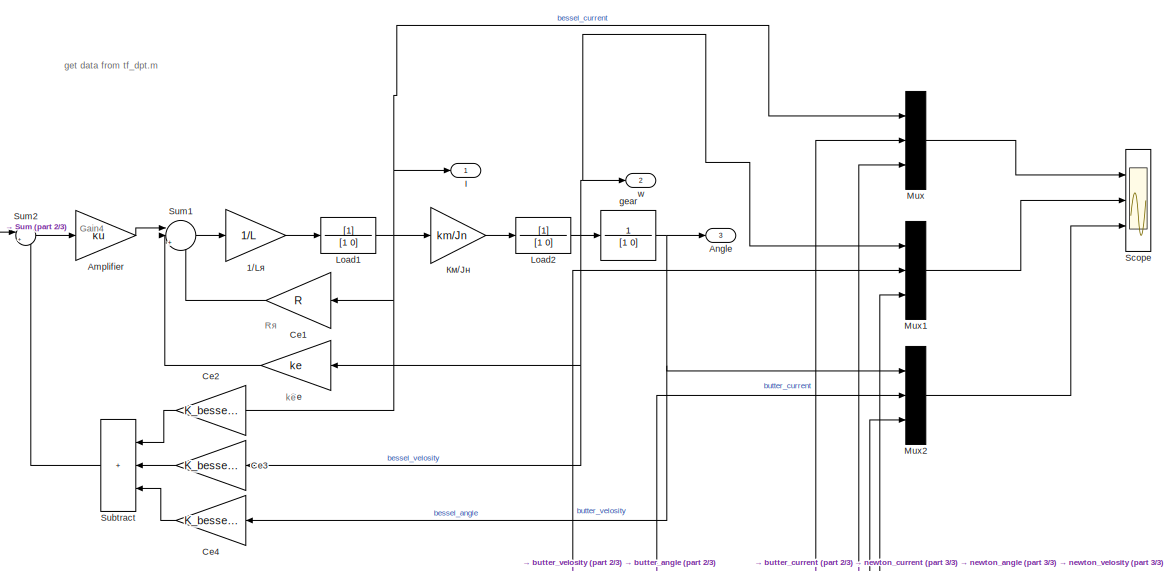
[diagram: root canvas - part 1/3, full width, top band]
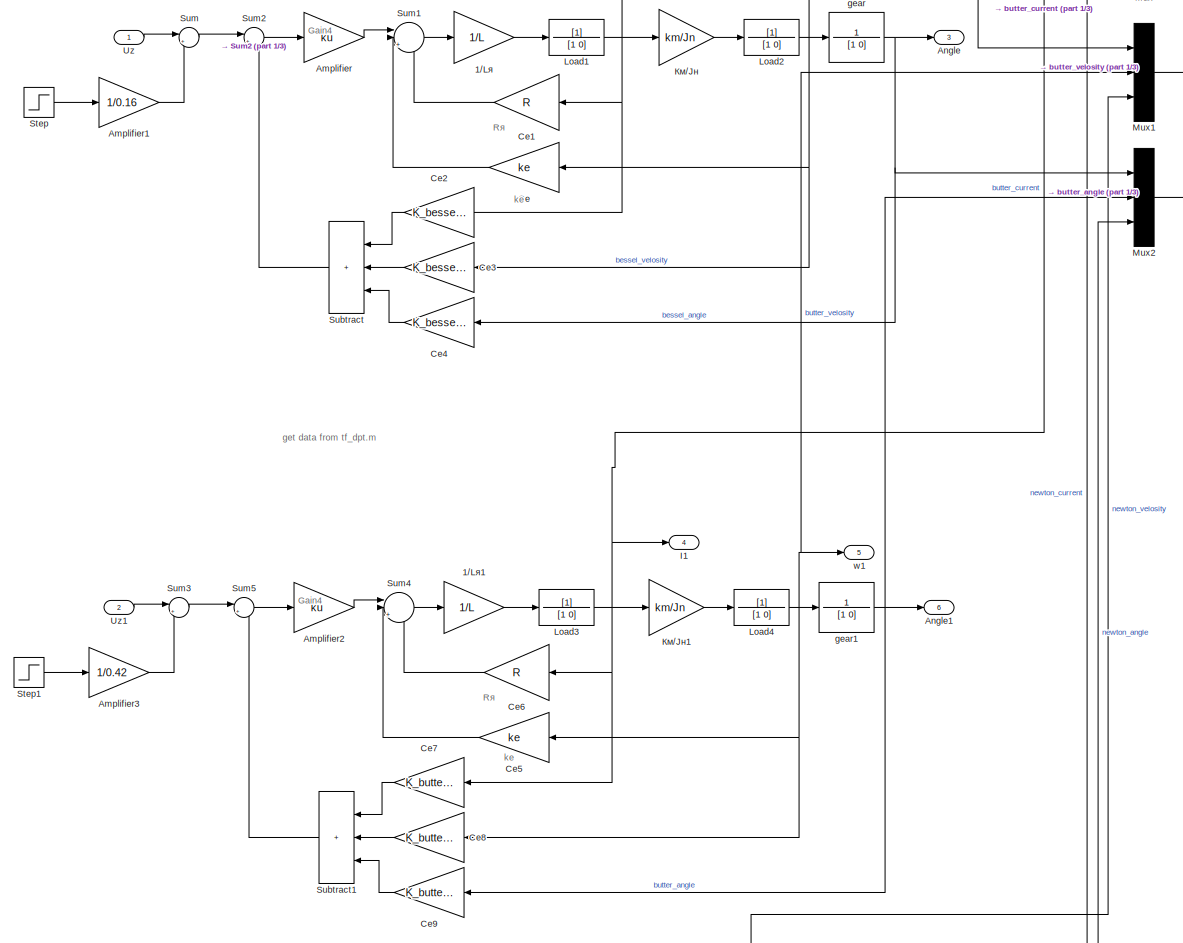
[diagram: root canvas - part 2/3, full width, middle band]
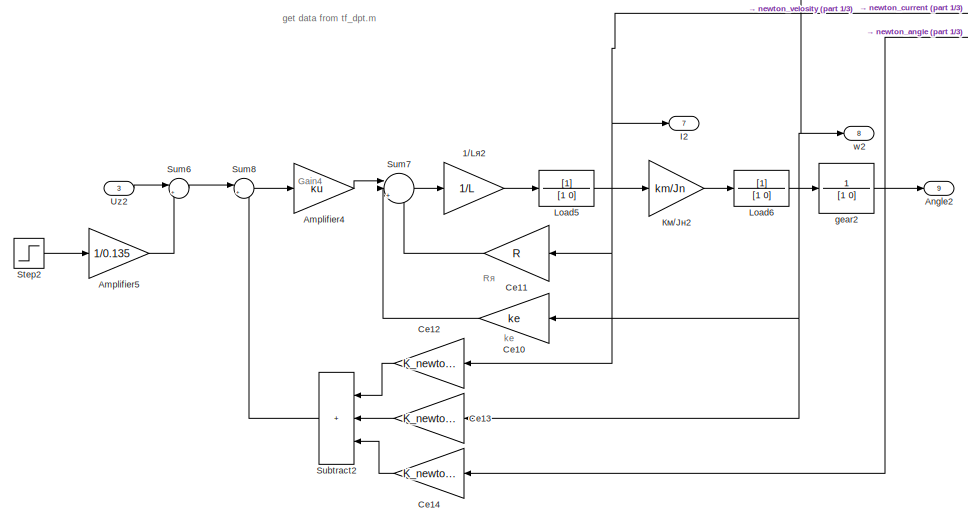
[diagram: root canvas - part 3/3, bottom center region]
MODEL slx_4c38d89c3cf4
KIND model
CONFIG AbsTol = auto
CONFIG EnableMultiTasking = off
CONFIG FixedStep = 1e-4
CONFIG MaxStep = auto
CONFIG MinStep = auto
CONFIG RelTol = 1e-3
CONFIG SampleTimeConstraint = Unconstrained
CONFIG SolverName = ode3
CONFIG StartTime = 0.0
CONFIG StopTime = 0.1
BLOCK [Gain] 1//Lя
  Gain = 1/L
BLOCK [Gain] 1//Lя1
  Gain = 1/L
BLOCK [Gain] 1//Lя2
  Gain = 1/L
BLOCK [Gain] Amplifier
  Gain = ku
BLOCK [Gain] Amplifier1
  Gain = 1/0.16
BLOCK [Gain] Amplifier2
  Gain = ku
BLOCK [Gain] Amplifier3
  Gain = 1/0.42
BLOCK [Gain] Amplifier4
  Gain = ku
BLOCK [Gain] Amplifier5
  Gain = 1/0.135
BLOCK [Outport] Angle
  Port = 3
BLOCK [Outport] Angle1
  Port = 6
BLOCK [Outport] Angle2
  Port = 9
BLOCK [Gain] Ce
  Gain = ke
BLOCK [Gain] Ce1
  Gain = R
BLOCK [Gain] Ce10
  Gain = ke
BLOCK [Gain] Ce11
  Gain = R
BLOCK [Gain] Ce12
  Gain = K_newton(1)
BLOCK [Gain] Ce13
  Gain = K_newton(2)
BLOCK [Gain] Ce14
  Gain = K_newton(3)
BLOCK [Gain] Ce2
  Gain = K_bessel(1)
BLOCK [Gain] Ce3
  Gain = K_bessel(2)
BLOCK [Gain] Ce4
  Gain = K_bessel(3)
BLOCK [Gain] Ce5
  Gain = ke
BLOCK [Gain] Ce6
  Gain = R
BLOCK [Gain] Ce7
  Gain = K_butter(1)
BLOCK [Gain] Ce8
  Gain = K_butter(2)
BLOCK [Gain] Ce9
  Gain = K_butter(3)
BLOCK [Outport] I
BLOCK [Outport] I1
  Port = 4
BLOCK [Outport] I2
  Port = 7
BLOCK [TransferFcn] Load1
  Denominator = [1 0]
BLOCK [TransferFcn] Load2
  Denominator = [1 0]
BLOCK [TransferFcn] Load3
  Denominator = [1 0]
BLOCK [TransferFcn] Load4
  Denominator = [1 0]
BLOCK [TransferFcn] Load5
  Denominator = [1 0]
BLOCK [TransferFcn] Load6
  Denominator = [1 0]
BLOCK [Mux] Mux
  Inputs = 3
  Ports = [3, 1]
BLOCK [Mux] Mux1
  Inputs = 3
  Ports = [3, 1]
BLOCK [Mux] Mux2
  Inputs = 3
  Ports = [3, 1]
BLOCK [Scope] Scope
  Floating = off
  NumInputPorts = 3
  Ports = [3]
  ScopeSpecificationString = Simulink.scopes.TimeScopeBlockCfg('CurrentConfiguration', extmgr.ConfigurationSet(extmgr.Configuration('Core','General UI',true,'FigureColor',[1 1 1]),extmgr.Configuration('Core','Source UI',true),extmgr.Configuration('Sources','WiredSimulink',true),extmgr.Configuration('Visuals','Time Domain',true,'SerializedDisplays',{struct('MinYLimReal','-4.25295','MaxYLimReal','6.8195','YLabelReal','','MinYLi...<+3691ch>
BLOCK [Step] Step
  SampleTime = 0
  Time = 0
BLOCK [Step] Step1
  SampleTime = 0
  Time = 0
BLOCK [Step] Step2
  SampleTime = 0
  Time = 0
BLOCK [Sum] Subtract
  IconShape = rectangular
  Inputs = +++
  Ports = [3, 1]
BLOCK [Sum] Subtract1
  IconShape = rectangular
  Inputs = +++
  Ports = [3, 1]
BLOCK [Sum] Subtract2
  IconShape = rectangular
  Inputs = +++
  Ports = [3, 1]
BLOCK [Sum] Sum
  Inputs = |++
  Ports = [2, 1]
BLOCK [Sum] Sum1
  Inputs = ||+--
  Ports = [3, 1]
BLOCK [Sum] Sum2
  Inputs = |+-
  Ports = [2, 1]
BLOCK [Sum] Sum3
  Inputs = |++
  Ports = [2, 1]
BLOCK [Sum] Sum4
  Inputs = ||+--
  Ports = [3, 1]
BLOCK [Sum] Sum5
  Inputs = |+-
  Ports = [2, 1]
BLOCK [Sum] Sum6
  Inputs = |++
  Ports = [2, 1]
BLOCK [Sum] Sum7
  Inputs = ||+--
  Ports = [3, 1]
BLOCK [Sum] Sum8
  Inputs = |+-
  Ports = [2, 1]
BLOCK [Inport] Uz
BLOCK [Inport] Uz1
  Port = 2
BLOCK [Inport] Uz2
  Port = 3
BLOCK [TransferFcn] gear
  Denominator = [1 0]
  Numerator = 1
BLOCK [TransferFcn] gear1
  Denominator = [1 0]
  Numerator = 1
BLOCK [TransferFcn] gear2
  Denominator = [1 0]
  Numerator = 1
BLOCK [Outport] w
  Port = 2
BLOCK [Outport] w1
  Port = 5
BLOCK [Outport] w2
  Port = 8
BLOCK [Gain] Км//Jн
  Gain = km/Jn
BLOCK [Gain] Км//Jн1
  Gain = km/Jn
BLOCK [Gain] Км//Jн2
  Gain = km/Jn
ANNOTATION (root): Rя
ANNOTATION (root): Gain4
ANNOTATION (root): kе
ANNOTATION (root): get data from tf_dpt.m
LINE 1//Lя1:1 -> Load3:1
LINE 1//Lя2:1 -> Load5:1
LINE 1//Lя:1 -> Load1:1
LINE Amplifier1:1 -> Sum:2
LINE Amplifier2:1 -> Sum4:1
LINE Amplifier3:1 -> Sum3:2
LINE Amplifier4:1 -> Sum7:1
LINE Amplifier5:1 -> Sum6:2
LINE Amplifier:1 -> Sum1:1
LINE Ce10:1 -> Sum7:2
LINE Ce11:1 -> Sum7:3
LINE Ce12:1 -> Subtract2:1
LINE Ce13:1 -> Subtract2:2
LINE Ce14:1 -> Subtract2:3
LINE Ce1:1 -> Sum1:3
LINE Ce2:1 -> Subtract:1
LINE Ce3:1 -> Subtract:2
LINE Ce4:1 -> Subtract:3
LINE Ce5:1 -> Sum4:2
LINE Ce6:1 -> Sum4:3
LINE Ce7:1 -> Subtract1:1
LINE Ce8:1 -> Subtract1:2
LINE Ce9:1 -> Subtract1:3
LINE Ce:1 -> Sum1:2
NET Load1:1 -> Ce1:1, Ce2:1, I:1, Mux:1, Км//Jн:1
NET Load2:1 -> Ce3:1, Ce:1, Mux1:1, gear:1, w:1
NET Load3:1 -> Ce6:1, Ce7:1, I1:1, Mux:2, Км//Jн1:1
NET Load4:1 -> Ce5:1, Ce8:1, Mux1:2, gear1:1, w1:1
NET Load5:1 -> Ce11:1, Ce12:1, I2:1, Mux:3, Км//Jн2:1
NET Load6:1 -> Ce10:1, Ce13:1, Mux1:3, gear2:1, w2:1
LINE Mux1:1 -> Scope:2
LINE Mux2:1 -> Scope:3
LINE Mux:1 -> Scope:1
LINE Step1:1 -> Amplifier3:1
LINE Step2:1 -> Amplifier5:1
LINE Step:1 -> Amplifier1:1
LINE Subtract1:1 -> Sum5:2
LINE Subtract2:1 -> Sum8:2
LINE Subtract:1 -> Sum2:2
LINE Sum1:1 -> 1//Lя:1
LINE Sum2:1 -> Amplifier:1
LINE Sum3:1 -> Sum5:1
LINE Sum4:1 -> 1//Lя1:1
LINE Sum5:1 -> Amplifier2:1
LINE Sum6:1 -> Sum8:1
LINE Sum7:1 -> 1//Lя2:1
LINE Sum8:1 -> Amplifier4:1
LINE Sum:1 -> Sum2:1
LINE Uz1:1 -> Sum3:1
LINE Uz2:1 -> Sum6:1
LINE Uz:1 -> Sum:1
NET gear1:1 -> Angle1:1, Ce9:1, Mux2:2
NET gear2:1 -> Angle2:1, Ce14:1, Mux2:3
NET gear:1 -> Angle:1, Ce4:1, Mux2:1
LINE Км//Jн1:1 -> Load4:1
LINE Км//Jн2:1 -> Load6:1
LINE Км//Jн:1 -> Load2:1
note: NET lines group one-source signal fan-out (src -> all destinations, sorted); 1:1 wires keep LINE
